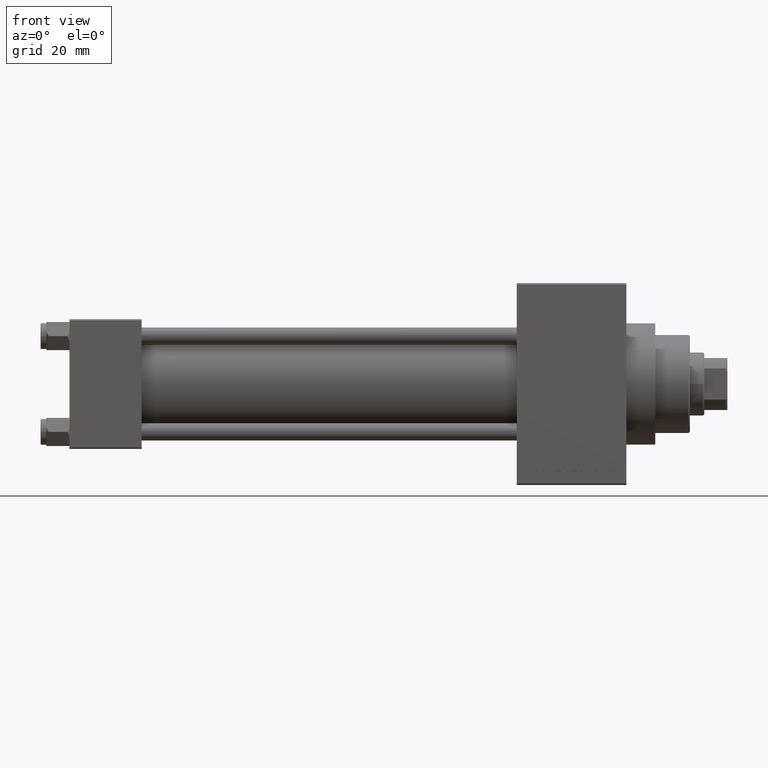
[diagram: clean part render]
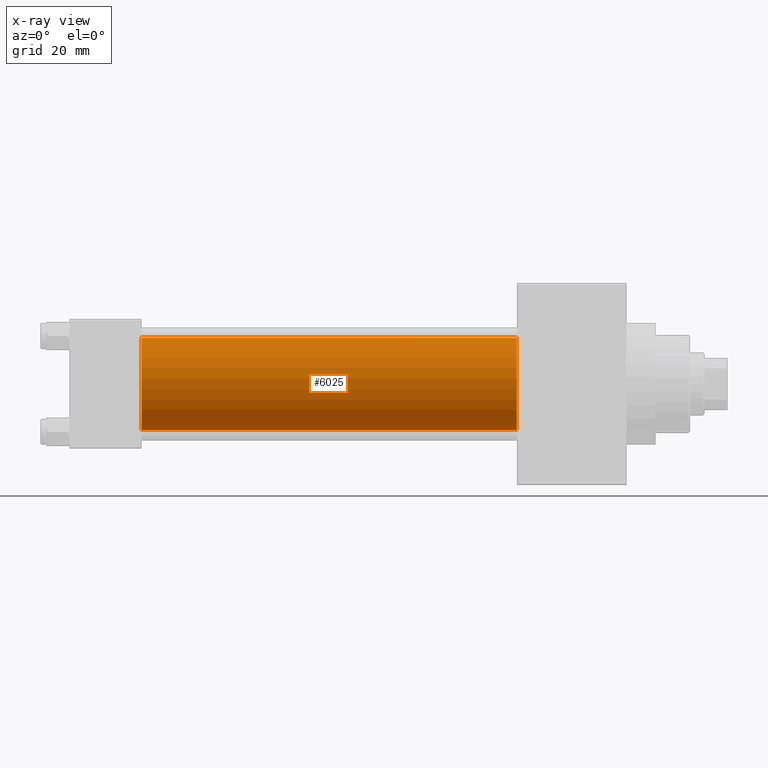
[diagram: x-ray — body ghosted, one internal face saturated and labeled with its STEP entity id]
A machine part, front view, then the same camera in x-ray: the body is ghosted and one INTERNAL B-rep face — a face not visible from any outside direction — is saturated and labeled: STEP entity #6025.
In plain terms, the highlighted cylindrical surface (partial cylindrical patch) has radius 16 mm, axis along (-1, -0, -0).
Its self-contained STEP definition (entity closure, byte-faithful):
#324 = EDGE_CURVE ( 'NONE', #35008, #32416, #46726, .T. ) ;
#1334 = CARTESIAN_POINT ( 'NONE',  ( 155.0000000000000000, -2.602085213965210642E-15, 16.00000000000000000 ) ) ;
#1978 = FACE_OUTER_BOUND ( 'NONE', #2730, .T. ) ;
#2730 = EDGE_LOOP ( 'NONE', ( #36988, #15920, #26295, #47319 ) ) ;
#3664 = DIRECTION ( 'NONE',  ( 1.000000000000000000, 0.000000000000000000, 0.000000000000000000 ) ) ;
#6025 = ADVANCED_FACE ( 'NONE', ( #1978 ), #27262, .F. ) ;
#6201 = VECTOR ( 'NONE', #16314, 1000.000000000000000 ) ;
#6253 = EDGE_CURVE ( 'NONE', #16882, #32416, #44581, .T. ) ;
#8625 = DIRECTION ( 'NONE',  ( -1.000000000000000000, -0.000000000000000000, -0.000000000000000000 ) ) ;
#10990 = VERTEX_POINT ( 'NONE', #40446 ) ;
#11375 = EDGE_CURVE ( 'NONE', #10990, #16882, #19990, .T. ) ;
#12226 = VECTOR ( 'NONE', #12849, 1000.000000000000000 ) ;
#12555 = DIRECTION ( 'NONE',  ( 0.000000000000000000, 0.000000000000000000, 1.000000000000000000 ) ) ;
#12849 = DIRECTION ( 'NONE',  ( -1.000000000000000000, -0.000000000000000000, -0.000000000000000000 ) ) ;
#13419 = AXIS2_PLACEMENT_3D ( 'NONE', #18096, #42363, #38410 ) ;
#15185 = EDGE_CURVE ( 'NONE', #10990, #35008, #18872, .T. ) ;
#15920 = ORIENTED_EDGE ( 'NONE', *, *, #324, .T. ) ;
#16314 = DIRECTION ( 'NONE',  ( -1.000000000000000000, -0.000000000000000000, -0.000000000000000000 ) ) ;
#16882 = VERTEX_POINT ( 'NONE', #21839 ) ;
#18096 = CARTESIAN_POINT ( 'NONE',  ( 155.0000000000000000, -2.602085213965210642E-15, 0.000000000000000000 ) ) ;
#18872 = CIRCLE ( 'NONE', #13419, 16.00000000000000000 ) ;
#19990 = LINE ( 'NONE', #1334, #6201 ) ;
#21839 = CARTESIAN_POINT ( 'NONE',  ( 25.00000000000000000, -2.602085213965210642E-15, 16.00000000000000000 ) ) ;
#23400 = AXIS2_PLACEMENT_3D ( 'NONE', #33597, #3664, #30402 ) ;
#24851 = CARTESIAN_POINT ( 'NONE',  ( 155.0000000000000000, -6.426503353294456087E-16, -16.00000000000000000 ) ) ;
#25738 = AXIS2_PLACEMENT_3D ( 'NONE', #31444, #8625, #12555 ) ;
#26295 = ORIENTED_EDGE ( 'NONE', *, *, #6253, .F. ) ;
#26466 = CARTESIAN_POINT ( 'NONE',  ( 25.00000000000000000, -6.426503353294456087E-16, -16.00000000000000000 ) ) ;
#27262 = CYLINDRICAL_SURFACE ( 'NONE', #25738, 16.00000000000000000 ) ;
#30402 = DIRECTION ( 'NONE',  ( 0.000000000000000000, 0.000000000000000000, -1.000000000000000000 ) ) ;
#31444 = CARTESIAN_POINT ( 'NONE',  ( 155.0000000000000000, -2.602085213965210642E-15, 0.000000000000000000 ) ) ;
#32416 = VERTEX_POINT ( 'NONE', #26466 ) ;
#33597 = CARTESIAN_POINT ( 'NONE',  ( 25.00000000000000000, -2.602085213965210642E-15, 0.000000000000000000 ) ) ;
#35008 = VERTEX_POINT ( 'NONE', #44371 ) ;
#36988 = ORIENTED_EDGE ( 'NONE', *, *, #15185, .T. ) ;
#38410 = DIRECTION ( 'NONE',  ( 0.000000000000000000, 0.000000000000000000, -1.000000000000000000 ) ) ;
#40446 = CARTESIAN_POINT ( 'NONE',  ( 155.0000000000000000, -2.602085213965210642E-15, 16.00000000000000000 ) ) ;
#42363 = DIRECTION ( 'NONE',  ( 1.000000000000000000, 0.000000000000000000, 0.000000000000000000 ) ) ;
#44371 = CARTESIAN_POINT ( 'NONE',  ( 155.0000000000000000, -6.426503353294456087E-16, -16.00000000000000000 ) ) ;
#44581 = CIRCLE ( 'NONE', #23400, 16.00000000000000000 ) ;
#46726 = LINE ( 'NONE', #24851, #12226 ) ;
#47319 = ORIENTED_EDGE ( 'NONE', *, *, #11375, .F. ) ;